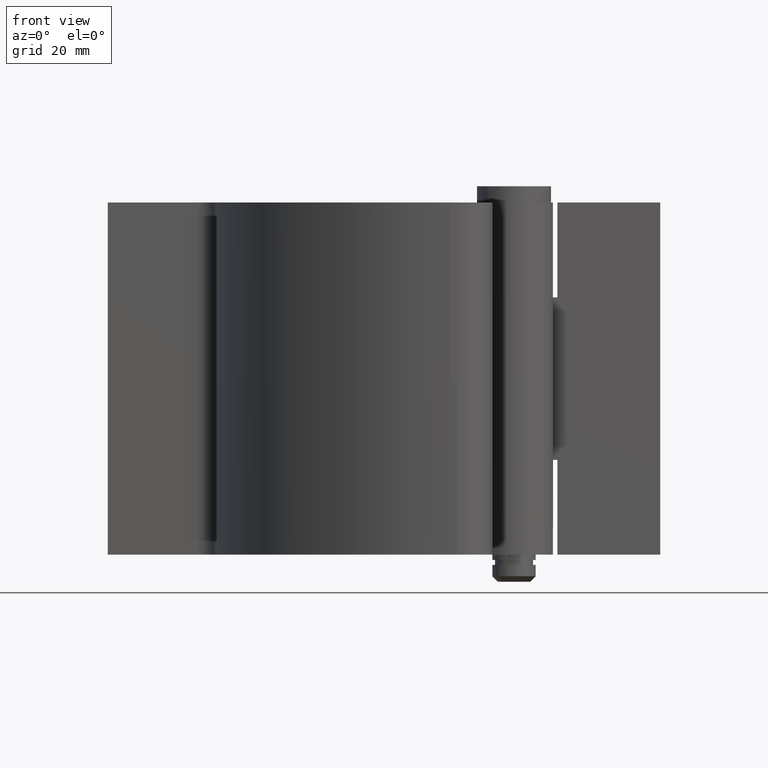
[diagram: clean part render]
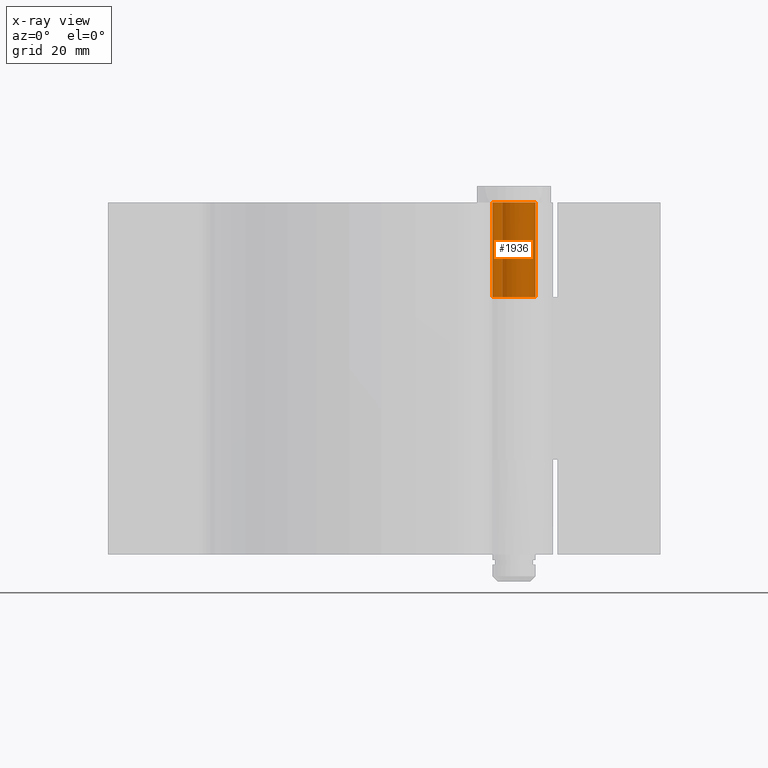
[diagram: x-ray — body ghosted, one internal face saturated and labeled with its STEP entity id]
A machine part, front view, then the same camera in x-ray: the body is ghosted and one INTERNAL B-rep face — a face not visible from any outside direction — is saturated and labeled: STEP entity #1936.
In plain terms, the highlighted face is a freeform B-spline surface patch.
Its self-contained STEP definition (entity closure, byte-faithful):
#1063=CARTESIAN_POINT('',(-2.194444444444445,-3.344310628552155,52.500000000000000));
#1064=VERTEX_POINT('',#1063);
#1072=CARTESIAN_POINT('',(-4.0,4.898431E-016,52.500000000000000));
#1073=VERTEX_POINT('',#1072);
#1074=CARTESIAN_POINT('',(-2.194444444444444,-3.344310628552156,52.500000000000000));
#1075=CARTESIAN_POINT('',(0.409871573676607,-5.053191008487919,52.500000000000014));
#1076=CARTESIAN_POINT('',(2.704736085765252,-2.946931065763036,52.500000000000000));
#1077=CARTESIAN_POINT('',(4.999600597853898,-0.840671123038152,52.500000000000014));
#1078=CARTESIAN_POINT('',(3.519785346990480,1.900292375165229,52.500000000000000));
#1079=CARTESIAN_POINT('',(2.039970096127063,4.641255873368612,52.500000000000014));
#1080=CARTESIAN_POINT('',(-0.980014951936469,3.878088536119432,52.500000000000000));
#1081=CARTESIAN_POINT('',(-4.0,3.114921198870253,52.500000000000014));
#1082=CARTESIAN_POINT('',(-4.0,0.0,52.500000000000000));
#1090=(BOUNDED_CURVE()B_SPLINE_CURVE(2,(#1074,#1075,#1076,#1077,#1078,#1079,#1080,#1081,#1082),.UNSPECIFIED.,.F.,.U.)B_SPLINE_CURVE_WITH_KNOTS((3,2,2,2,3),(0.0,0.250000000000000,0.500000000000000,0.750000000000000,1.0),.UNSPECIFIED.)CURVE()GEOMETRIC_REPRESENTATION_ITEM()RATIONAL_B_SPLINE_CURVE((1.0,0.788987876327678,1.0,0.788987876327678,1.0,0.788987876327678,1.0,0.788987876327678,1.0))REPRESENTATION_ITEM(''));
#1091=EDGE_CURVE('',#1064,#1073,#1090,.T.);
#1437=CARTESIAN_POINT('',(-4.0,4.898425E-016,70.0));
#1438=VERTEX_POINT('',#1437);
#1444=CARTESIAN_POINT('',(-2.194444444444445,-3.344310628552155,70.0));
#1445=VERTEX_POINT('',#1444);
#1446=CARTESIAN_POINT('',(-4.0,0.0,70.0));
#1447=CARTESIAN_POINT('',(-4.000000000000000,3.114921198870251,70.0));
#1448=CARTESIAN_POINT('',(-0.980014951936471,3.878088536119432,70.0));
#1449=CARTESIAN_POINT('',(2.039970096127059,4.641255873368613,70.0));
#1450=CARTESIAN_POINT('',(3.519785346990479,1.900292375165231,70.0));
#1451=CARTESIAN_POINT('',(4.999600597853899,-0.840671123038150,70.0));
#1452=CARTESIAN_POINT('',(2.704736085765254,-2.946931065763034,70.0));
#1453=CARTESIAN_POINT('',(0.409871573676609,-5.053191008487919,70.0));
#1454=CARTESIAN_POINT('',(-2.194444444444443,-3.344310628552157,70.0));
#1462=(BOUNDED_CURVE()B_SPLINE_CURVE(2,(#1446,#1447,#1448,#1449,#1450,#1451,#1452,#1453,#1454),.UNSPECIFIED.,.F.,.U.)B_SPLINE_CURVE_WITH_KNOTS((3,2,2,2,3),(0.0,0.250000000000000,0.500000000000000,0.750000000000000,1.0),.UNSPECIFIED.)CURVE()GEOMETRIC_REPRESENTATION_ITEM()RATIONAL_B_SPLINE_CURVE((1.0,0.788987876327678,1.0,0.788987876327678,1.0,0.788987876327678,1.0,0.788987876327678,1.0))REPRESENTATION_ITEM(''));
#1463=EDGE_CURVE('',#1438,#1445,#1462,.T.);
#1891=CARTESIAN_POINT('',(-4.0,4.898425E-016,70.0));
#1892=CARTESIAN_POINT('',(-4.0,4.898431E-016,52.500000000000000));
#1893=QUASI_UNIFORM_CURVE('',1,(#1891,#1892),.UNSPECIFIED.,.F.,.U.);
#1894=EDGE_CURVE('',#1438,#1073,#1893,.T.);
#1904=CARTESIAN_POINT('',(-2.223545132141799,-3.325033390107308,70.437500000000014));
#1905=CARTESIAN_POINT('',(-2.223545132141799,-3.325033390107308,52.051562499999989));
#1906=CARTESIAN_POINT('',(1.907039107569799,-6.087273464579448,70.437500000000014));
#1907=CARTESIAN_POINT('',(1.907039107569799,-6.087273464579448,52.051562499999989));
#1908=CARTESIAN_POINT('',(3.723243027672891,-1.462005935995199,70.437500000000014));
#1909=CARTESIAN_POINT('',(3.723243027672891,-1.462005935995199,52.051562499999989));
#1910=CARTESIAN_POINT('',(5.539446947775986,3.163261592589050,70.437500000000014));
#1911=CARTESIAN_POINT('',(5.539446947775986,3.163261592589050,52.051562499999989));
#1912=CARTESIAN_POINT('',(0.632984853029714,3.949598736053442,70.437500000000014));
#1913=CARTESIAN_POINT('',(0.632984853029714,3.949598736053442,52.051562499999989));
#1914=CARTESIAN_POINT('',(-4.273477241716556,4.735935879517833,70.437500000000014));
#1915=CARTESIAN_POINT('',(-4.273477241716556,4.735935879517833,52.051562499999989));
#1916=CARTESIAN_POINT('',(-3.993652602612172,-0.225252945927515,70.437500000000014));
#1917=CARTESIAN_POINT('',(-3.993652602612172,-0.225252945927515,52.051562499999989));
#1925=(BOUNDED_SURFACE()B_SPLINE_SURFACE(1,2,((#1904,#1906,#1908,#1910,#1912,#1914,#1916),(#1905,#1907,#1909,#1911,#1913,#1915,#1917)),.UNSPECIFIED.,.F.,.F.,.U.)B_SPLINE_SURFACE_WITH_KNOTS((2,2),(3,2,2,3),(0.0,18.385937500000029),(0.0,7.660193727597652,15.320387455195300,22.980581182792960),.UNSPECIFIED.)GEOMETRIC_REPRESENTATION_ITEM()RATIONAL_B_SPLINE_SURFACE(((1.0,0.627057105746662,1.0,0.627057105746662,1.0,0.627057105746662,1.0),(1.0,0.627057105746662,1.0,0.627057105746662,1.0,0.627057105746662,1.0)))REPRESENTATION_ITEM('')SURFACE());
#1926=ORIENTED_EDGE('',*,*,#1091,.F.);
#1927=CARTESIAN_POINT('',(-2.194444444444445,-3.344310628552155,70.0));
#1928=CARTESIAN_POINT('',(-2.194444444444445,-3.344310628552155,52.500000000000000));
#1929=QUASI_UNIFORM_CURVE('',1,(#1927,#1928),.UNSPECIFIED.,.F.,.U.);
#1930=EDGE_CURVE('',#1445,#1064,#1929,.T.);
#1931=ORIENTED_EDGE('',*,*,#1930,.F.);
#1932=ORIENTED_EDGE('',*,*,#1463,.F.);
#1933=ORIENTED_EDGE('',*,*,#1894,.T.);
#1934=EDGE_LOOP('',(#1926,#1931,#1932,#1933));
#1935=FACE_OUTER_BOUND('',#1934,.T.);
#1936=ADVANCED_FACE('',(#1935),#1925,.F.);